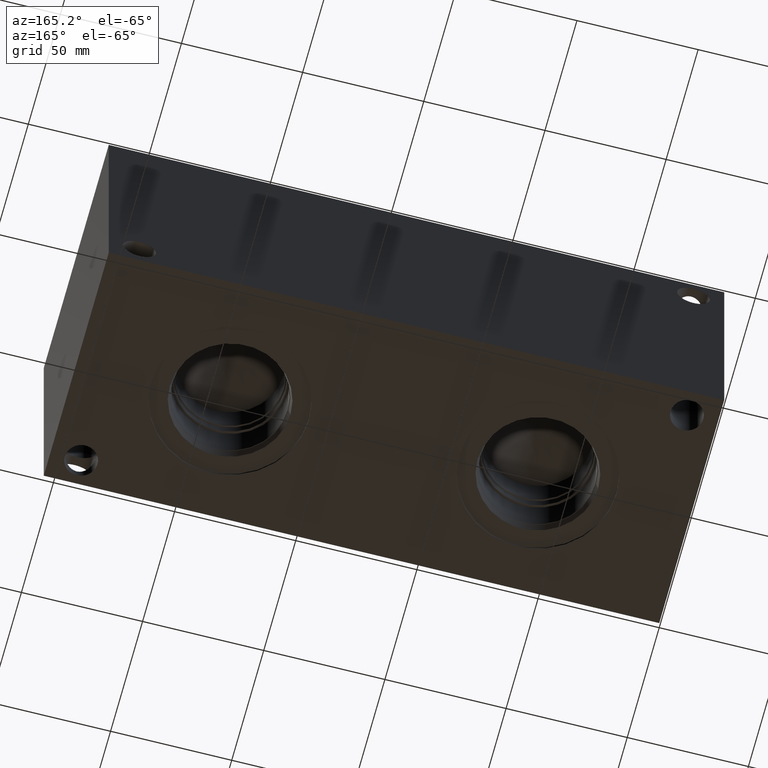
[diagram: clean part render]
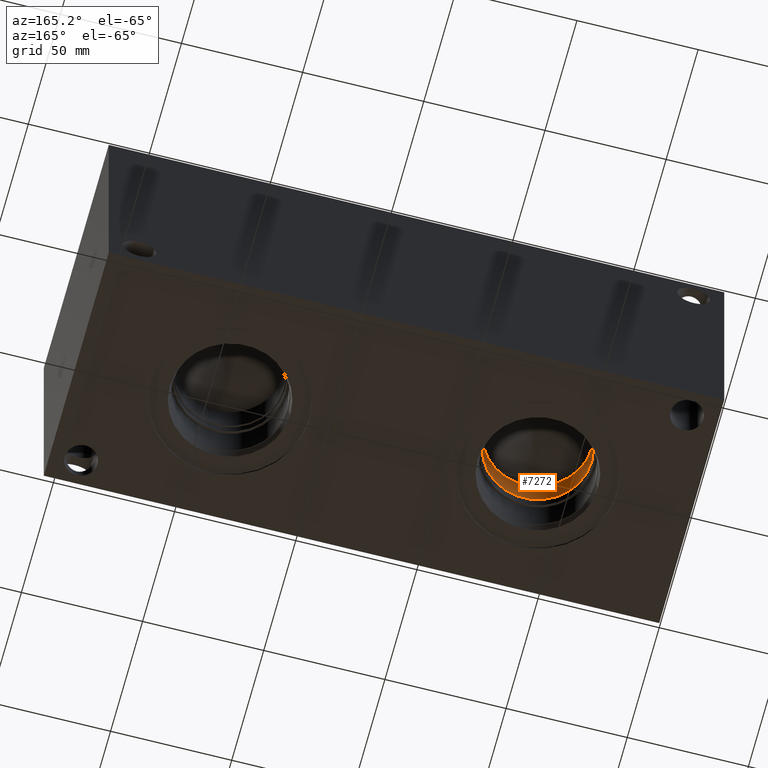
[diagram: same view with one face highlighted and labeled with its STEP entity id]
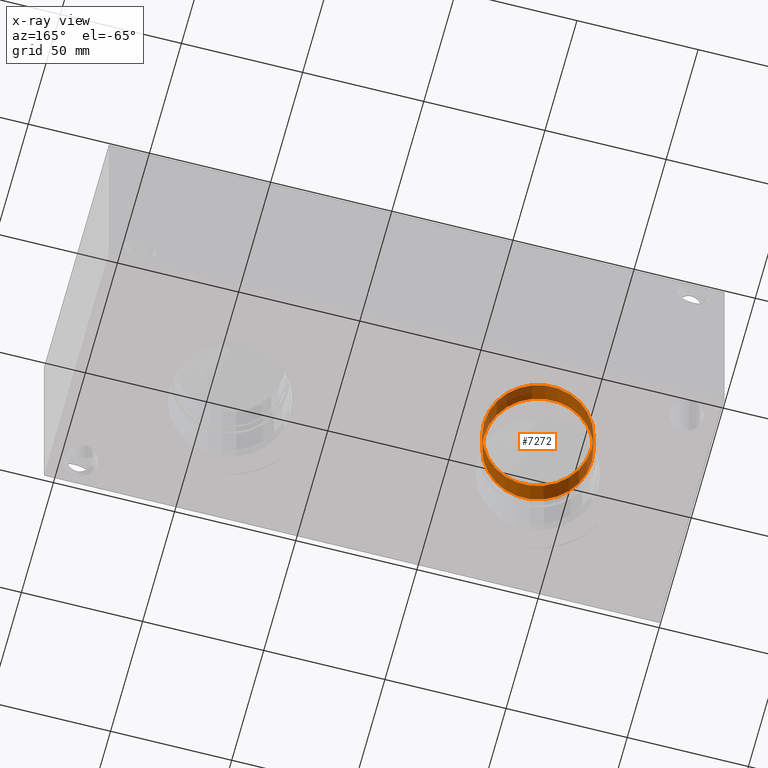
[diagram: x-ray of the same camera — body ghosted, the highlighted face saturated]
A machine part, auxiliary view. The second image highlights one B-rep face of the part: STEP entity #7272.
The next image is the same camera in x-ray: the body ghosted, the highlighted face saturated — about 29% of this face is hidden behind the body in this view.
In plain terms, the highlighted cylindrical surface (bore or boss wall) has radius 22.225 mm, axis along (0, 0, -1).
Its self-contained STEP definition (entity closure, byte-faithful):
#48=CYLINDRICAL_SURFACE('',#7598,22.225);
#93=CIRCLE('',#7596,22.225);
#94=CIRCLE('',#7597,22.225);
#95=CIRCLE('',#7599,22.225);
#812=FACE_OUTER_BOUND('',#1214,.T.);
#1214=EDGE_LOOP('',(#6190,#6191,#6192,#6193,#6194));
#1955=LINE('',#12248,#2676);
#2676=VECTOR('',#8925,22.225);
#3320=VERTEX_POINT('',#12239);
#3321=VERTEX_POINT('',#12240);
#3323=VERTEX_POINT('',#12246);
#4295=EDGE_CURVE('',#3320,#3321,#93,.T.);
#4297=EDGE_CURVE('',#3321,#3320,#94,.T.);
#4298=EDGE_CURVE('',#3323,#3323,#95,.T.);
#4299=EDGE_CURVE('',#3323,#3321,#1955,.T.);
#6190=ORIENTED_EDGE('',*,*,#4298,.F.);
#6191=ORIENTED_EDGE('',*,*,#4299,.T.);
#6192=ORIENTED_EDGE('',*,*,#4295,.F.);
#6193=ORIENTED_EDGE('',*,*,#4297,.F.);
#6194=ORIENTED_EDGE('',*,*,#4299,.F.);
#7272=ADVANCED_FACE('',(#812),#48,.F.);
#7596=AXIS2_PLACEMENT_3D('',#12241,#8916,#8917);
#7597=AXIS2_PLACEMENT_3D('',#12244,#8919,#8920);
#7598=AXIS2_PLACEMENT_3D('',#12245,#8921,#8922);
#7599=AXIS2_PLACEMENT_3D('',#12247,#8923,#8924);
#8916=DIRECTION('center_axis',(0.,0.,-1.));
#8917=DIRECTION('ref_axis',(1.,0.,0.));
#8919=DIRECTION('center_axis',(0.,0.,-1.));
#8920=DIRECTION('ref_axis',(1.,0.,0.));
#8921=DIRECTION('center_axis',(0.,0.,-1.));
#8922=DIRECTION('ref_axis',(1.,0.,0.));
#8923=DIRECTION('center_axis',(0.,0.,1.));
#8924=DIRECTION('ref_axis',(1.,0.,0.));
#8925=DIRECTION('',(0.,0.,1.));
#12239=CARTESIAN_POINT('',(85.725,50.8,36.8708));
#12240=CARTESIAN_POINT('',(41.275,50.8,36.8708));
#12241=CARTESIAN_POINT('Origin',(63.5,50.8,36.8708));
#12244=CARTESIAN_POINT('Origin',(63.5,50.8,36.8708));
#12245=CARTESIAN_POINT('Origin',(63.5,50.8,18.4354));
#12246=CARTESIAN_POINT('',(41.275,50.8,24.0391937893504));
#12247=CARTESIAN_POINT('Origin',(63.5,50.8,24.0391937893504));
#12248=CARTESIAN_POINT('',(41.275,50.8,18.4354));